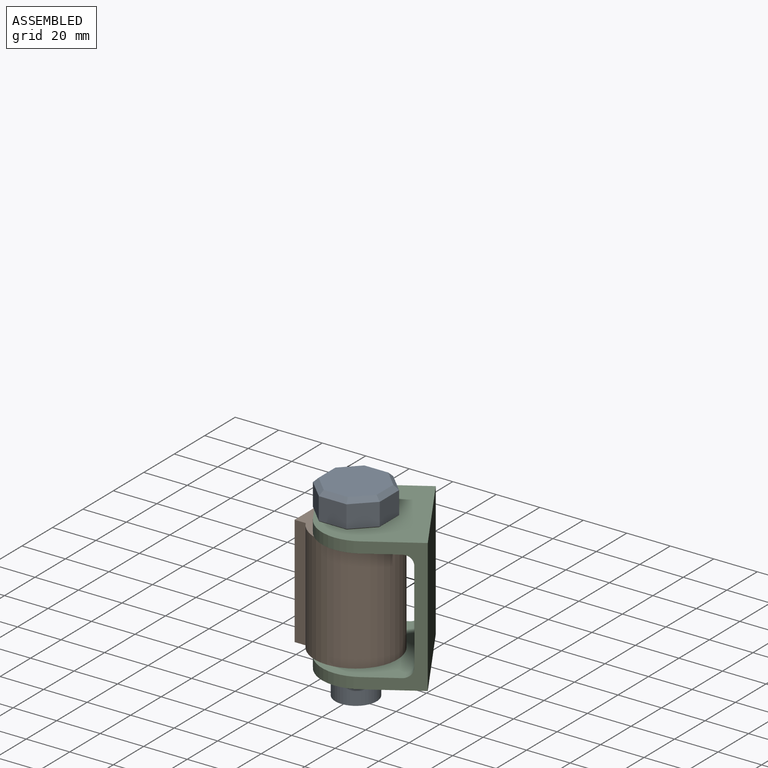
[diagram: assembled view]
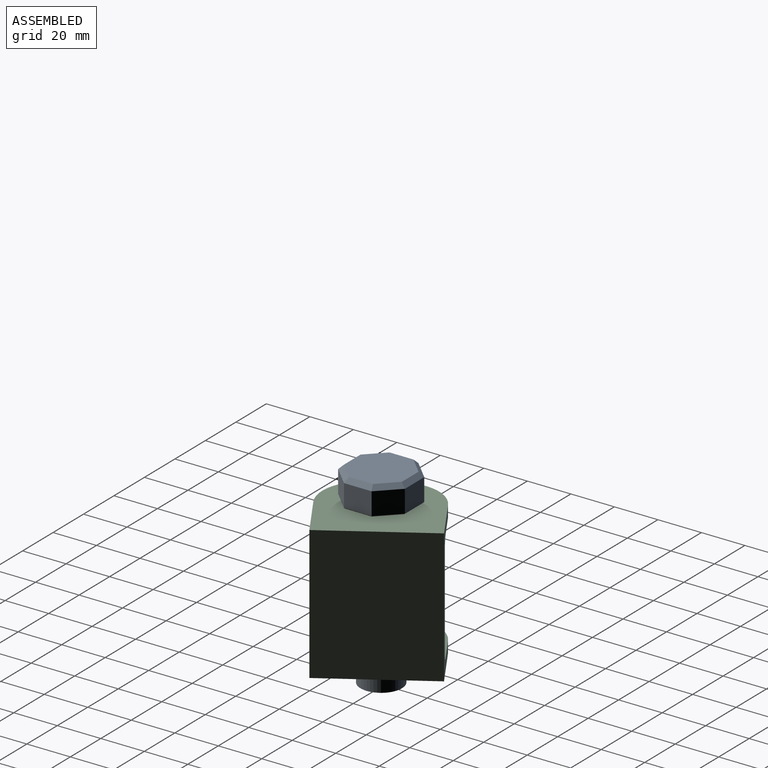
[diagram: assembled view, second angle]
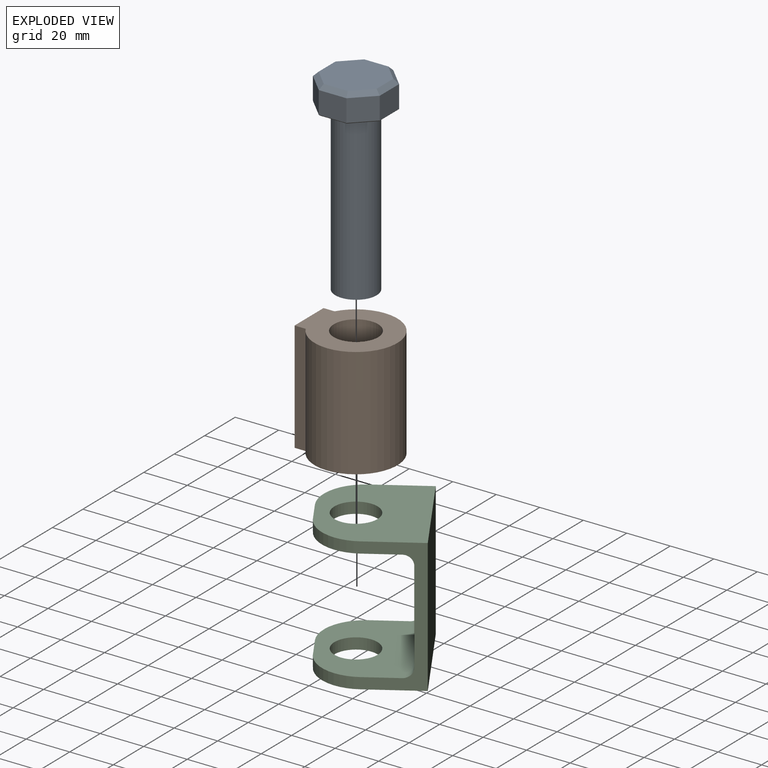
[diagram: exploded view]
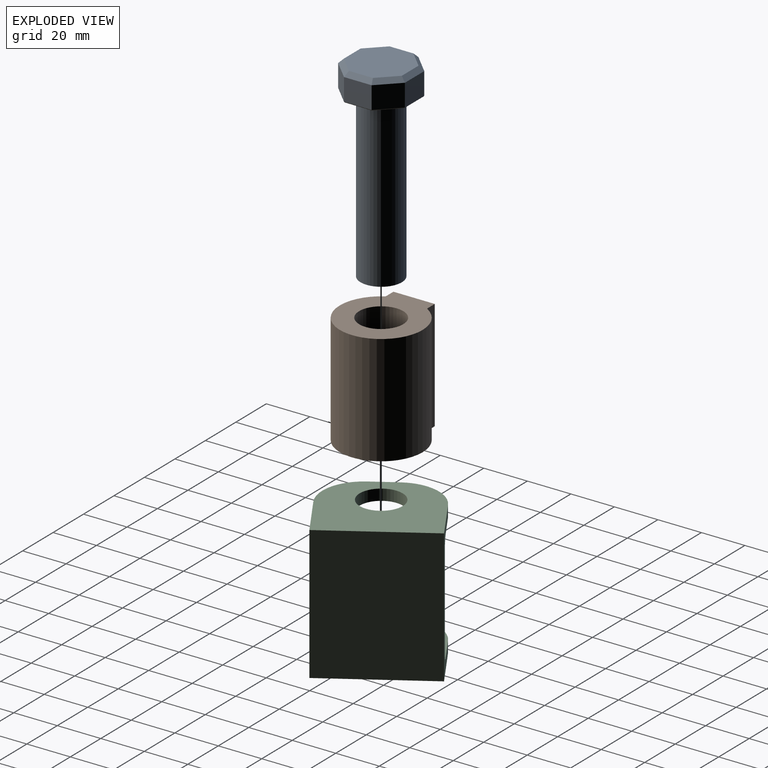
[diagram: exploded view, second angle]
ASSEMBLY  parts=3 mates=2
PART A: 29 faces, bbox 30.7x30.7x88.9 mm
  f0: cylinder r=9.53mm len=75.82mm, axis (0,0,-1), area 4537.6mm2, adj f1,f20
  f1: plane 19.05x19.05mm, normal (0,0,-1), area 285mm2, adj f0
  f2: plane 10.29x9mm, normal (0.71,0.71,0), area 131mm2, adj f3,f9,f12,f21
  f3: plane 12.7x10.29mm, normal (0,1,0), area 130.6mm2, adj f2,f4,f14,f23
  f4: plane 10.29x9mm, normal (-0.71,0.71,0), area 131mm2, adj f3,f5,f16,f25
  f5: plane 12.7x10.29mm, normal (-1,0,0), area 130.6mm2, adj f4,f6,f18,f27
  f6: plane 10.29x9mm, normal (-0.71,-0.71,0), area 131mm2, adj f5,f7,f19,f28
  f7: plane 12.7x10.29mm, normal (0,-1,0), area 130.6mm2, adj f6,f8,f17,f26
  f8: plane 10.29x9mm, normal (0.71,-0.71,0), area 131mm2, adj f7,f9,f15,f24
  f9: plane 12.7x10.29mm, normal (1,0,0), area 130.6mm2, adj f2,f8,f13,f22
  f10: plane 26.64x26.64mm, normal (0,0,1), area 587.8mm2, adj f12,f13,f14,f15,f16,f17,f18,f19
  f11: plane 29.95x29.95mm, normal (0,0,-1), area 434.3mm2, adj f20,f21,f22,f23,f24,f25,f26,f27
  f12: plane 9.85x9.85mm, normal (0.5,0.5,0.71), area 34.2mm2, adj f2,f10,f13,f14
  f13: plane 12.7x2.03mm, normal (0.71,0,0.71), area 34.1mm2, adj f9,f10,f12,f15
  f14: plane 12.7x2.03mm, normal (0,0.71,0.71), area 34.1mm2, adj f3,f10,f12,f16
  f15: plane 9.85x9.85mm, normal (0.5,-0.5,0.71), area 34.2mm2, adj f8,f10,f13,f17
  f16: plane 9.85x9.85mm, normal (-0.5,0.5,0.71), area 34.2mm2, adj f4,f10,f14,f18
  f17: plane 12.7x2.03mm, normal (0,-0.71,0.71), area 34.1mm2, adj f7,f10,f15,f19
  f18: plane 12.7x2.03mm, normal (-0.71,0,0.71), area 34.1mm2, adj f5,f10,f16,f19
  f19: plane 9.85x9.85mm, normal (-0.5,-0.5,0.71), area 34.2mm2, adj f6,f10,f17,f18
  f20: cone r=9.91mm half-angle=45deg, axis (0,0,1), area 32.9mm2, adj f0,f11
  f21: plane 9.16x9.16mm, normal (0.5,0.5,-0.71), area 6.8mm2, adj f2,f11,f22,f23
  f22: plane 12.7x0.38mm, normal (0.71,0,-0.71), area 6.8mm2, adj f9,f11,f21,f24
  f23: plane 12.7x0.38mm, normal (0,0.71,-0.71), area 6.8mm2, adj f3,f11,f21,f25
  f24: plane 9.16x9.16mm, normal (0.5,-0.5,-0.71), area 6.8mm2, adj f8,f11,f22,f26
  f25: plane 9.16x9.16mm, normal (-0.5,0.5,-0.71), area 6.8mm2, adj f4,f11,f23,f27
  f26: plane 12.7x0.38mm, normal (0,-0.71,-0.71), area 6.8mm2, adj f7,f11,f24,f28
  f27: plane 12.7x0.38mm, normal (-0.71,0,-0.71), area 6.8mm2, adj f5,f11,f25,f28
  f28: plane 9.16x9.16mm, normal (-0.5,-0.5,-0.71), area 6.8mm2, adj f6,f11,f26,f27
PART B: 7 faces, bbox 40.6x38.1x50.8 mm
  f0: plane 50.8x5.08mm, normal (0,-1,0), area 258.1mm2, adj f1,f3,f4,f5
  f1: cylinder r=19.05mm len=50.8mm, axis (0,0,-1), area 5069.6mm2, adj f0,f2,f4,f5
  f2: plane 50.8x5.08mm, normal (0,1,0), area 258.1mm2, adj f1,f3,f4,f5
  f3: plane 50.8x19.01mm, normal (-1,0,0), area 965.6mm2, adj f0,f2,f4,f5
  f4: plane 40.64x38.1mm, normal (0,0,1), area 879.7mm2, adj f0,f1,f2,f3,f6
  f5: plane 40.64x38.1mm, normal (0,0,-1), area 879.7mm2, adj f0,f1,f2,f3,f6
  f6: cylinder r=10.16mm len=50.8mm, axis (0,0,1), area 3242.9mm2, adj f4,f5
PART C: 18 faces, bbox 44.5x50.8x61.5 mm
  f0: plane 50.8x44.45mm, normal (0,0,1), area 1794mm2, adj f1,f9,f10,f11,f13,f15,f17
  f1: plane 12.7x5.08mm, normal (-1,0,0), area 64.5mm2, adj f0,f2,f13,f15
  f2: plane 50.8x34.8mm, normal (0,0,-1), area 1303.7mm2, adj f1,f3,f10,f11,f13,f15,f17
  f3: cylinder r=4.57mm len=50.8mm, axis (0,1,0), area 364.8mm2, adj f2,f4,f10,f11
  f4: plane 50.8x42.16mm, normal (-1,0,0), area 2141.9mm2, adj f3,f5,f10,f11
  f5: cylinder r=4.57mm len=50.8mm, axis (0,1,0), area 364.8mm2, adj f4,f6,f10,f11
  f6: plane 50.8x34.8mm, normal (0,0,1), area 1303.7mm2, adj f5,f7,f10,f11,f12,f14,f16
  f7: plane 12.7x5.08mm, normal (-1,0,0), area 64.5mm2, adj f6,f8,f12,f14
  f8: plane 50.8x44.45mm, normal (0,0,-1), area 1794mm2, adj f7,f9,f10,f11,f12,f14,f16
  f9: plane 61.47x50.8mm, normal (1,0,0), area 3122.6mm2, adj f0,f8,f10,f11
  f10: plane 61.47x25.4mm, normal (0,-1,0), area 527.7mm2, adj f0,f2,f3,f4,f5,f6,f8,f9
  f11: plane 61.47x25.4mm, normal (0,1,0), area 527.7mm2, adj f0,f2,f3,f4,f5,f6,f8,f9
  f12: cylinder r=19.05mm len=19.05mm, axis (0,0,-1), area 152mm2, adj f6,f7,f8,f11
  f13: cylinder r=19.05mm len=19.05mm, axis (0,0,-1), area 152mm2, adj f0,f1,f2,f11
  f14: cylinder r=19.05mm len=19.05mm, axis (0,0,1), area 152mm2, adj f6,f7,f8,f10
  f15: cylinder r=19.05mm len=19.05mm, axis (0,0,1), area 152mm2, adj f0,f1,f2,f10
  f16: cylinder r=9.91mm len=19.81mm, axis (0,0,1), area 316.2mm2, adj f6,f8
  f17: cylinder r=9.91mm len=19.81mm, axis (0,0,1), area 316.2mm2, adj f0,f2
PLACE A t=(21.59,0,-19.94)mm
PLACE B t=(21.59,0,0)mm
PLACE C rot(axis=(0,0,1),31.6deg) t=(28.29,33.95,-5.59)mm
MATE revolute A.f0 <-> C.f16  axis (0,0,-1) through (21.59,0,55.88)mm
MATE revolute B.f6 <-> C.f16  axis (0,0,1) through (21.59,0,50.8)mm
